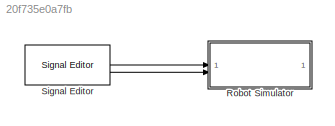
MODEL slx_20f735e0a7fb
KIND model
CONFIG AbsTol = auto
CONFIG EnableMultiTasking = off
CONFIG FixedStep = 0.01
CONFIG MaxStep = auto
CONFIG MinStep = auto
CONFIG RelTol = 1e-3
CONFIG SampleTimeConstraint = Unconstrained
CONFIG SolverName = FixedStepDiscrete
CONFIG StartTime = 0.0
CONFIG StopTime = 93
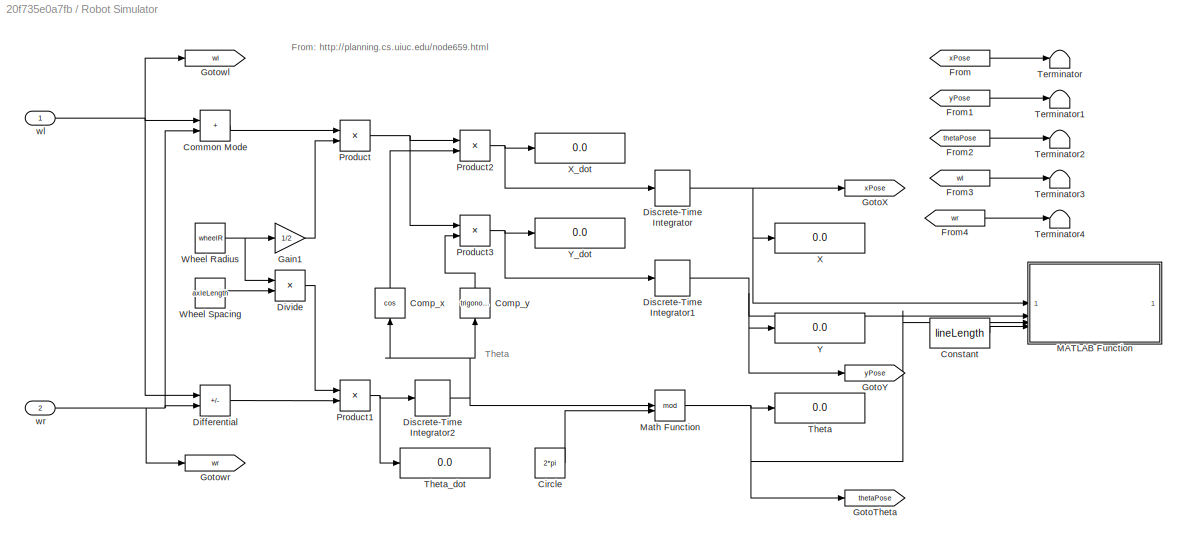
BLOCK [SubSystem] Robot Simulator
  AncestorBlock = mobileRoboticsTrainingLib/Robot Simulator
  Priority = 99
BLOCK [Constant] Robot Simulator/Circle
  Value = 2*pi
BLOCK [Sum] Robot Simulator/Common Mode
  IconShape = rectangular
BLOCK [Trigonometry] Robot Simulator/Comp_x
  NameLocation = right
  Operator = cos
BLOCK [Trigonometry] Robot Simulator/Comp_y
  NameLocation = right
BLOCK [Constant] Robot Simulator/Constant
  Value = lineLength
BLOCK [Sum] Robot Simulator/Differential
  IconShape = rectangular
  Inputs = -+
BLOCK [DiscreteIntegrator] Robot Simulator/Discrete-Time Integrator
  ICPrevOutput = DiscIntNeverNeededParam
  ICPrevScaledInput = DiscIntNeverNeededParam
  InitialCondition = startX
  InitialConditionSetting = Auto
  SampleTime = -1
BLOCK [DiscreteIntegrator] Robot Simulator/Discrete-Time Integrator1
  ICPrevOutput = DiscIntNeverNeededParam
  ICPrevScaledInput = DiscIntNeverNeededParam
  InitialCondition = startY
  InitialConditionSetting = Auto
  SampleTime = -1
BLOCK [DiscreteIntegrator] Robot Simulator/Discrete-Time Integrator2
  ICPrevOutput = DiscIntNeverNeededParam
  ICPrevScaledInput = DiscIntNeverNeededParam
  InitialCondition = startTheta*(pi/180)
  InitialConditionSetting = Auto
  SampleTime = -1
BLOCK [Product] Robot Simulator/Divide
  Inputs = */
BLOCK [From] Robot Simulator/From
  GotoTag = xPose
  TagVisibility = global
BLOCK [From] Robot Simulator/From1
  GotoTag = yPose
  TagVisibility = global
BLOCK [From] Robot Simulator/From2
  GotoTag = thetaPose
  TagVisibility = global
BLOCK [From] Robot Simulator/From3
  GotoTag = wl
  TagVisibility = global
BLOCK [From] Robot Simulator/From4
  GotoTag = wr
  TagVisibility = global
BLOCK [Gain] Robot Simulator/Gain1
  Gain = 1/2
BLOCK [Goto] Robot Simulator/GotoTheta
  GotoTag = thetaPose
  TagVisibility = global
BLOCK [Goto] Robot Simulator/GotoX
  GotoTag = xPose
  TagVisibility = global
BLOCK [Goto] Robot Simulator/GotoY
  GotoTag = yPose
  TagVisibility = global
BLOCK [Goto] Robot Simulator/Gotowl
  GotoTag = wl
  TagVisibility = global
BLOCK [Goto] Robot Simulator/Gotowr
  GotoTag = wr
  TagVisibility = global
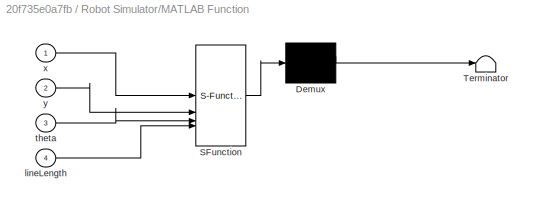
BLOCK [SubSystem] Robot Simulator/MATLAB Function
  ErrorFcn = Stateflow.Translate.translate
  PermitHierarchicalResolution = ExplicitOnly
  SFBlockType = MATLAB Function
  TreatAsAtomicUnit = on
BLOCK [Demux] Robot Simulator/MATLAB Function/ Demux 
  Outputs = 1
BLOCK [S-Function] Robot Simulator/MATLAB Function/ SFunction 
  EnableBusSupport = on
  FunctionName = sf_sfun
  PortCounts = [4 1]
  SFcnIsStateOwnerBlock = off
  SFunctionDeploymentMode = off
  Tag = Stateflow S-Function 1
BLOCK [Terminator] Robot Simulator/MATLAB Function/ Terminator 
BLOCK [Inport] Robot Simulator/MATLAB Function/lineLength
  Port = 4
BLOCK [Inport] Robot Simulator/MATLAB Function/theta
  Port = 3
BLOCK [Inport] Robot Simulator/MATLAB Function/x
BLOCK [Inport] Robot Simulator/MATLAB Function/y
  Port = 2
BLOCK [Math] Robot Simulator/Math Function
  Operator = mod
  SignedPower = on
BLOCK [Product] Robot Simulator/Product
  RndMeth = Zero
BLOCK [Product] Robot Simulator/Product1
  RndMeth = Zero
BLOCK [Product] Robot Simulator/Product2
  RndMeth = Zero
BLOCK [Product] Robot Simulator/Product3
  RndMeth = Zero
BLOCK [Terminator] Robot Simulator/Terminator
BLOCK [Terminator] Robot Simulator/Terminator1
BLOCK [Terminator] Robot Simulator/Terminator2
BLOCK [Terminator] Robot Simulator/Terminator3
BLOCK [Terminator] Robot Simulator/Terminator4
BLOCK [Display] Robot Simulator/Theta
  Decimation = 1
BLOCK [Display] Robot Simulator/Theta_dot
  Decimation = 1
BLOCK [Constant] Robot Simulator/Wheel Radius
  Value = wheelR
BLOCK [Constant] Robot Simulator/Wheel Spacing
  Value = axleLength
BLOCK [Display] Robot Simulator/X
  Decimation = 1
BLOCK [Display] Robot Simulator/X_dot
  Decimation = 1
BLOCK [Display] Robot Simulator/Y
  Decimation = 1
BLOCK [Display] Robot Simulator/Y_dot
  Decimation = 1
BLOCK [Inport] Robot Simulator/wl
BLOCK [Inport] Robot Simulator/wr
  Port = 2
BLOCK [Reference] Signal Editor  REF=SignalEditorBlockLib/Signal Editor
  LibrarySourceBlock = simulink/Sources/Signal Editor
  SourceBlock = SignalEditorBlockLib/Signal Editor
  SourceType = SignalEditor
  UserDataPersistent = on
ANNOTATION Robot Simulator: From: http://planning.cs.uiuc.edu/node659.html
ANNOTATION Robot Simulator: Theta
LINE Signal Editor:1 -> Robot Simulator:1
LINE Signal Editor:2 -> Robot Simulator:2
CHART Robot Simulator/MATLAB Function states=1 transitions=1
  STATE_LABEL 'eML_blk_kernel()'
  STATE_LABEL "SCRIPT:\nfunction plotRobot(x,y,theta,lineLength)\n% Get plot details\ncoder.extrinsic('evalin','plot')\nph1 = evalin('base','PlotHandle1');\nph2 = evalin('base','PlotHandle2');\n\n% Find length orientation line\nxp = [x x+lineLength*cos(theta)];\nyp = [y y+lineLength*sin(theta)];\n\n% Plot robot\nset(ph1,'xdata',xp,'ydata',yp);\nset(ph2,'xdata',x,'ydata',y);\ndrawnow('limitrate')"
CHART  states=0 transitions=0
